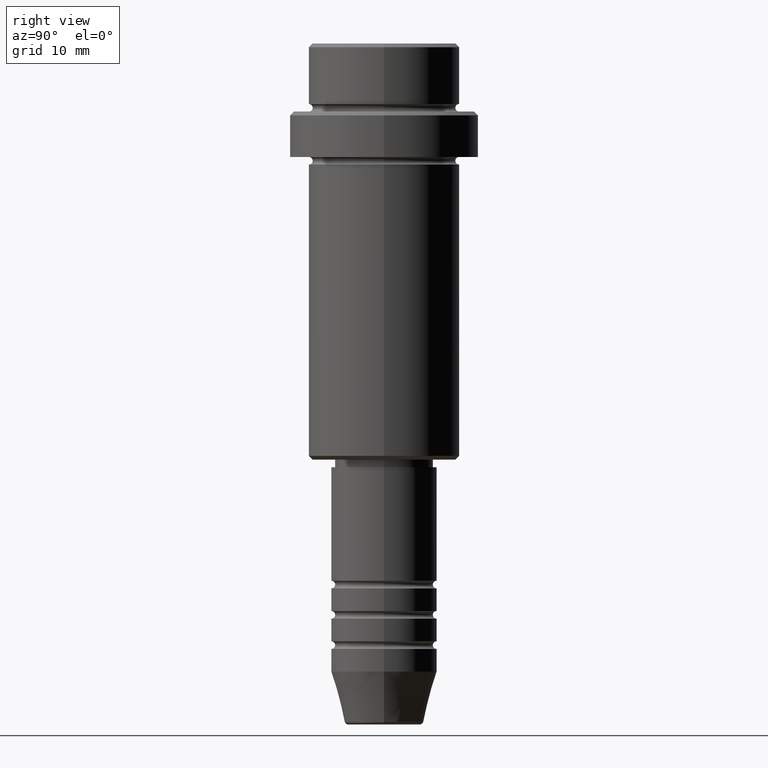
[diagram: clean part render]
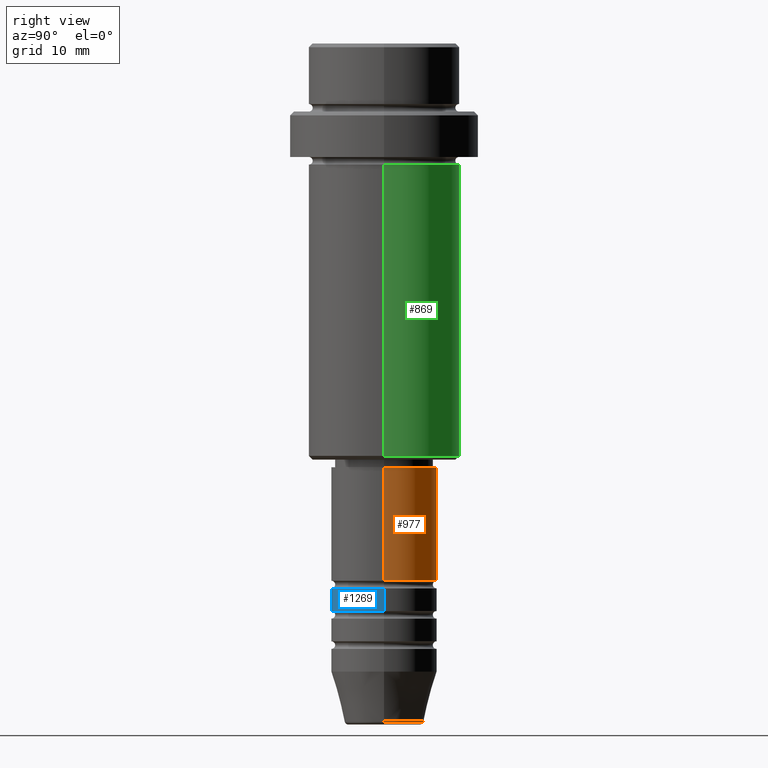
[diagram: same view with three faces highlighted in distinct colors, each labeled with its STEP entity id]
A machine part, right view with three faces highlighted in distinct colors.
Their STEP definitions:

[orange] entity #977 — the highlighted cylindrical surface (partial cylindrical patch) has radius 7 mm, axis along (-0, -0, 1).
#4 = EDGE_CURVE ( 'NONE', #260, #20, #702, .T. ) ;
#20 = VERTEX_POINT ( 'NONE', #1266 ) ;
#79 = DIRECTION ( 'NONE',  ( -0.000000000000000000, -0.000000000000000000, 1.000000000000000000 ) ) ;
#122 = DIRECTION ( 'NONE',  ( -0.000000000000000000, -0.000000000000000000, 1.000000000000000000 ) ) ;
#190 = DIRECTION ( 'NONE',  ( 1.000000000000000000, 0.000000000000000000, 0.000000000000000000 ) ) ;
#191 = CARTESIAN_POINT ( 'NONE',  ( -7.000000000000000000, 8.572527594031473190E-16, -70.99999999999990052 ) ) ;
#249 = CARTESIAN_POINT ( 'NONE',  ( 7.000000000000000000, 0.000000000000000000, 0.000000000000000000 ) ) ;
#260 = VERTEX_POINT ( 'NONE', #590 ) ;
#283 = DIRECTION ( 'NONE',  ( -0.000000000000000000, -0.000000000000000000, 1.000000000000000000 ) ) ;
#295 = CIRCLE ( 'NONE', #1074, 7.000000000000000000 ) ;
#360 = AXIS2_PLACEMENT_3D ( 'NONE', #1384, #405, #994 ) ;
#397 = CARTESIAN_POINT ( 'NONE',  ( -7.000000000000000000, 8.572527594031473190E-16, 0.000000000000000000 ) ) ;
#405 = DIRECTION ( 'NONE',  ( -0.000000000000000000, -0.000000000000000000, 1.000000000000000000 ) ) ;
#514 = CYLINDRICAL_SURFACE ( 'NONE', #360, 7.000000000000000000 ) ;
#590 = CARTESIAN_POINT ( 'NONE',  ( 7.000000000000000000, 0.000000000000000000, -56.00000000000000000 ) ) ;
#668 = LINE ( 'NONE', #249, #1208 ) ;
#669 = ORIENTED_EDGE ( 'NONE', *, *, #712, .F. ) ;
#702 = CIRCLE ( 'NONE', #1399, 7.000000000000000000 ) ;
#712 = EDGE_CURVE ( 'NONE', #1018, #260, #668, .T. ) ;
#741 = ORIENTED_EDGE ( 'NONE', *, *, #1089, .T. ) ;
#776 = ORIENTED_EDGE ( 'NONE', *, *, #4, .F. ) ;
#802 = VECTOR ( 'NONE', #283, 1000.000000000000000 ) ;
#936 = FACE_OUTER_BOUND ( 'NONE', #1311, .T. ) ;
#977 = ADVANCED_FACE ( 'NONE', ( #936 ), #514, .T. ) ;
#994 = DIRECTION ( 'NONE',  ( 1.000000000000000000, 0.000000000000000000, 0.000000000000000000 ) ) ;
#1018 = VERTEX_POINT ( 'NONE', #1417 ) ;
#1066 = EDGE_CURVE ( 'NONE', #1018, #1371, #295, .T. ) ;
#1074 = AXIS2_PLACEMENT_3D ( 'NONE', #1382, #79, #190 ) ;
#1089 = EDGE_CURVE ( 'NONE', #1371, #20, #1256, .T. ) ;
#1094 = CARTESIAN_POINT ( 'NONE',  ( 0.000000000000000000, 0.000000000000000000, -56.00000000000000000 ) ) ;
#1106 = DIRECTION ( 'NONE',  ( -0.000000000000000000, -0.000000000000000000, 1.000000000000000000 ) ) ;
#1208 = VECTOR ( 'NONE', #1106, 1000.000000000000000 ) ;
#1247 = ORIENTED_EDGE ( 'NONE', *, *, #1066, .T. ) ;
#1256 = LINE ( 'NONE', #397, #802 ) ;
#1266 = CARTESIAN_POINT ( 'NONE',  ( -7.000000000000000000, 8.572527594031473190E-16, -56.00000000000000000 ) ) ;
#1309 = DIRECTION ( 'NONE',  ( 1.000000000000000000, 0.000000000000000000, 0.000000000000000000 ) ) ;
#1311 = EDGE_LOOP ( 'NONE', ( #1247, #741, #776, #669 ) ) ;
#1371 = VERTEX_POINT ( 'NONE', #191 ) ;
#1382 = CARTESIAN_POINT ( 'NONE',  ( 0.000000000000000000, 0.000000000000000000, -70.99999999999990052 ) ) ;
#1384 = CARTESIAN_POINT ( 'NONE',  ( 0.000000000000000000, 0.000000000000000000, 0.000000000000000000 ) ) ;
#1399 = AXIS2_PLACEMENT_3D ( 'NONE', #1094, #122, #1309 ) ;
#1417 = CARTESIAN_POINT ( 'NONE',  ( 7.000000000000000000, 0.000000000000000000, -70.99999999999990052 ) ) ;

[blue] entity #1269 — the highlighted cylindrical surface (partial cylindrical patch) has radius 7 mm, axis along (-0, -0, 1).
#7 = ORIENTED_EDGE ( 'NONE', *, *, #678, .T. ) ;
#92 = VECTOR ( 'NONE', #1398, 1000.000000000000000 ) ;
#97 = CARTESIAN_POINT ( 'NONE',  ( 7.000000000000000000, 0.000000000000000000, 0.000000000000000000 ) ) ;
#147 = DIRECTION ( 'NONE',  ( -0.000000000000000000, -0.000000000000000000, 1.000000000000000000 ) ) ;
#316 = EDGE_CURVE ( 'NONE', #338, #588, #356, .T. ) ;
#338 = VERTEX_POINT ( 'NONE', #377 ) ;
#356 = CIRCLE ( 'NONE', #1032, 7.000000000000000000 ) ;
#377 = CARTESIAN_POINT ( 'NONE',  ( -7.000000000000000000, 8.572527594031473190E-16, -71.99999999999990052 ) ) ;
#425 = CARTESIAN_POINT ( 'NONE',  ( 7.000000000000000000, 0.000000000000000000, -71.99999999999990052 ) ) ;
#440 = VERTEX_POINT ( 'NONE', #504 ) ;
#499 = ORIENTED_EDGE ( 'NONE', *, *, #1312, .T. ) ;
#504 = CARTESIAN_POINT ( 'NONE',  ( 7.000000000000000000, 0.000000000000000000, -74.99999999999990052 ) ) ;
#539 = LINE ( 'NONE', #1172, #919 ) ;
#588 = VERTEX_POINT ( 'NONE', #425 ) ;
#678 = EDGE_CURVE ( 'NONE', #1140, #440, #684, .T. ) ;
#684 = CIRCLE ( 'NONE', #1341, 7.000000000000000000 ) ;
#693 = CARTESIAN_POINT ( 'NONE',  ( 0.000000000000000000, 0.000000000000000000, 0.000000000000000000 ) ) ;
#709 = DIRECTION ( 'NONE',  ( -0.000000000000000000, -0.000000000000000000, 1.000000000000000000 ) ) ;
#796 = FACE_OUTER_BOUND ( 'NONE', #1233, .T. ) ;
#839 = LINE ( 'NONE', #97, #92 ) ;
#911 = DIRECTION ( 'NONE',  ( -0.000000000000000000, -0.000000000000000000, 1.000000000000000000 ) ) ;
#919 = VECTOR ( 'NONE', #1176, 1000.000000000000000 ) ;
#924 = CARTESIAN_POINT ( 'NONE',  ( 0.000000000000000000, 0.000000000000000000, -71.99999999999990052 ) ) ;
#1024 = DIRECTION ( 'NONE',  ( 1.000000000000000000, 0.000000000000000000, 0.000000000000000000 ) ) ;
#1032 = AXIS2_PLACEMENT_3D ( 'NONE', #924, #709, #1036 ) ;
#1036 = DIRECTION ( 'NONE',  ( 1.000000000000000000, 0.000000000000000000, 0.000000000000000000 ) ) ;
#1118 = CARTESIAN_POINT ( 'NONE',  ( 0.000000000000000000, 0.000000000000000000, -74.99999999999990052 ) ) ;
#1140 = VERTEX_POINT ( 'NONE', #1357 ) ;
#1171 = EDGE_CURVE ( 'NONE', #1140, #338, #539, .T. ) ;
#1172 = CARTESIAN_POINT ( 'NONE',  ( -7.000000000000000000, 8.572527594031473190E-16, 0.000000000000000000 ) ) ;
#1176 = DIRECTION ( 'NONE',  ( -0.000000000000000000, -0.000000000000000000, 1.000000000000000000 ) ) ;
#1233 = EDGE_LOOP ( 'NONE', ( #1241, #7, #499, #1258 ) ) ;
#1241 = ORIENTED_EDGE ( 'NONE', *, *, #1171, .F. ) ;
#1258 = ORIENTED_EDGE ( 'NONE', *, *, #316, .F. ) ;
#1269 = ADVANCED_FACE ( 'NONE', ( #796 ), #1335, .T. ) ;
#1312 = EDGE_CURVE ( 'NONE', #440, #588, #839, .T. ) ;
#1322 = AXIS2_PLACEMENT_3D ( 'NONE', #693, #911, #1024 ) ;
#1330 = DIRECTION ( 'NONE',  ( 1.000000000000000000, 0.000000000000000000, 0.000000000000000000 ) ) ;
#1335 = CYLINDRICAL_SURFACE ( 'NONE', #1322, 7.000000000000000000 ) ;
#1341 = AXIS2_PLACEMENT_3D ( 'NONE', #1118, #147, #1330 ) ;
#1357 = CARTESIAN_POINT ( 'NONE',  ( -7.000000000000000000, 8.572527594031473190E-16, -74.99999999999990052 ) ) ;
#1398 = DIRECTION ( 'NONE',  ( -0.000000000000000000, -0.000000000000000000, 1.000000000000000000 ) ) ;

[green] entity #869 — the highlighted cylindrical surface (partial cylindrical patch) has radius 10 mm, axis along (-0, -0, 1).
#9 = DIRECTION ( 'NONE',  ( 1.000000000000000000, 0.000000000000000000, 0.000000000000000000 ) ) ;
#15 = ORIENTED_EDGE ( 'NONE', *, *, #180, .F. ) ;
#17 = CARTESIAN_POINT ( 'NONE',  ( 0.000000000000000000, 0.000000000000000000, -16.00000000000000000 ) ) ;
#29 = VERTEX_POINT ( 'NONE', #1169 ) ;
#49 = AXIS2_PLACEMENT_3D ( 'NONE', #183, #105, #786 ) ;
#105 = DIRECTION ( 'NONE',  ( -0.000000000000000000, -0.000000000000000000, 1.000000000000000000 ) ) ;
#127 = FACE_OUTER_BOUND ( 'NONE', #132, .T. ) ;
#132 = EDGE_LOOP ( 'NONE', ( #816, #743, #15, #879 ) ) ;
#162 = CARTESIAN_POINT ( 'NONE',  ( -9.999999999999998224, 1.224646799147353059E-15, 0.000000000000000000 ) ) ;
#180 = EDGE_CURVE ( 'NONE', #804, #29, #612, .T. ) ;
#183 = CARTESIAN_POINT ( 'NONE',  ( 0.000000000000000000, 0.000000000000000000, -54.50000000000002842 ) ) ;
#198 = CARTESIAN_POINT ( 'NONE',  ( 9.999999999999998224, 0.000000000000000000, -16.00000000000000000 ) ) ;
#203 = CARTESIAN_POINT ( 'NONE',  ( 0.000000000000000000, 0.000000000000000000, 0.000000000000000000 ) ) ;
#256 = DIRECTION ( 'NONE',  ( -0.000000000000000000, -0.000000000000000000, 1.000000000000000000 ) ) ;
#261 = EDGE_CURVE ( 'NONE', #773, #804, #605, .T. ) ;
#385 = DIRECTION ( 'NONE',  ( -0.000000000000000000, -0.000000000000000000, 1.000000000000000000 ) ) ;
#408 = AXIS2_PLACEMENT_3D ( 'NONE', #203, #982, #999 ) ;
#427 = AXIS2_PLACEMENT_3D ( 'NONE', #17, #646, #9 ) ;
#591 = VECTOR ( 'NONE', #256, 1000.000000000000000 ) ;
#605 = LINE ( 'NONE', #1248, #591 ) ;
#612 = CIRCLE ( 'NONE', #427, 9.999999999999998224 ) ;
#623 = LINE ( 'NONE', #162, #640 ) ;
#640 = VECTOR ( 'NONE', #385, 1000.000000000000000 ) ;
#646 = DIRECTION ( 'NONE',  ( -0.000000000000000000, -0.000000000000000000, 1.000000000000000000 ) ) ;
#743 = ORIENTED_EDGE ( 'NONE', *, *, #1073, .T. ) ;
#773 = VERTEX_POINT ( 'NONE', #990 ) ;
#785 = VERTEX_POINT ( 'NONE', #1183 ) ;
#786 = DIRECTION ( 'NONE',  ( -1.000000000000000000, 0.000000000000000000, 0.000000000000000000 ) ) ;
#804 = VERTEX_POINT ( 'NONE', #198 ) ;
#816 = ORIENTED_EDGE ( 'NONE', *, *, #1328, .T. ) ;
#828 = CIRCLE ( 'NONE', #49, 9.999999999999998224 ) ;
#869 = ADVANCED_FACE ( 'NONE', ( #127 ), #1179, .T. ) ;
#879 = ORIENTED_EDGE ( 'NONE', *, *, #261, .F. ) ;
#982 = DIRECTION ( 'NONE',  ( -0.000000000000000000, -0.000000000000000000, 1.000000000000000000 ) ) ;
#990 = CARTESIAN_POINT ( 'NONE',  ( 9.999999999999998224, 0.000000000000000000, -54.50000000000002842 ) ) ;
#999 = DIRECTION ( 'NONE',  ( 1.000000000000000000, 0.000000000000000000, 0.000000000000000000 ) ) ;
#1073 = EDGE_CURVE ( 'NONE', #785, #29, #623, .T. ) ;
#1169 = CARTESIAN_POINT ( 'NONE',  ( -9.999999999999998224, 1.224646799147353059E-15, -16.00000000000000000 ) ) ;
#1179 = CYLINDRICAL_SURFACE ( 'NONE', #408, 9.999999999999998224 ) ;
#1183 = CARTESIAN_POINT ( 'NONE',  ( -9.999999999999998224, 1.224646799147353059E-15, -54.50000000000002842 ) ) ;
#1248 = CARTESIAN_POINT ( 'NONE',  ( 9.999999999999998224, 0.000000000000000000, 0.000000000000000000 ) ) ;
#1328 = EDGE_CURVE ( 'NONE', #773, #785, #828, .T. ) ;